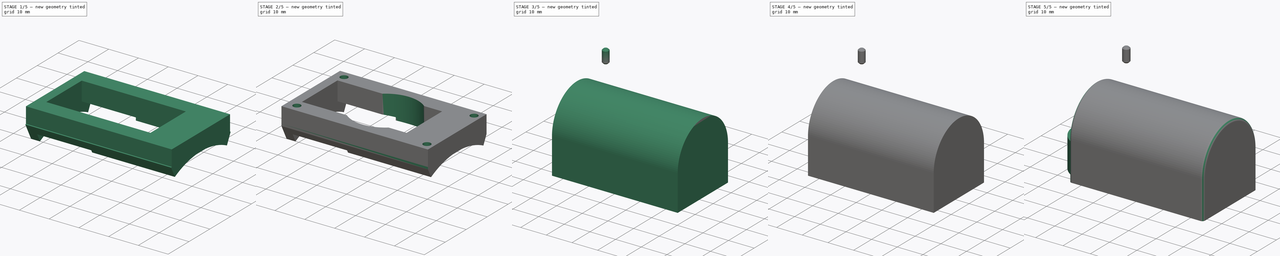
[diagram: build sequence overview — one tinted view per stage of 5, left to right]
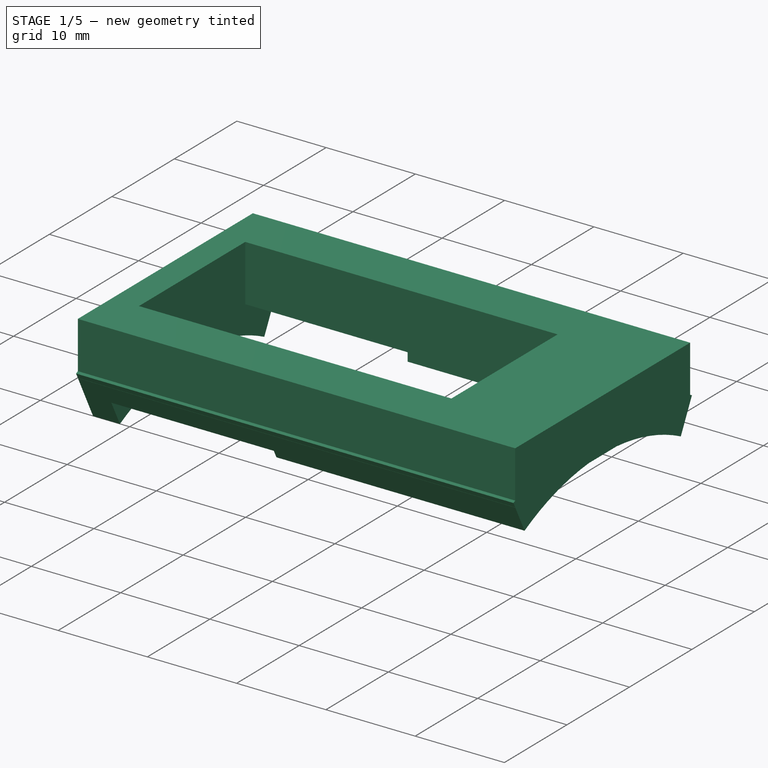
[diagram: stage 1 of 5 — iso view after this stage's code; geometry added in this stage tinted green]
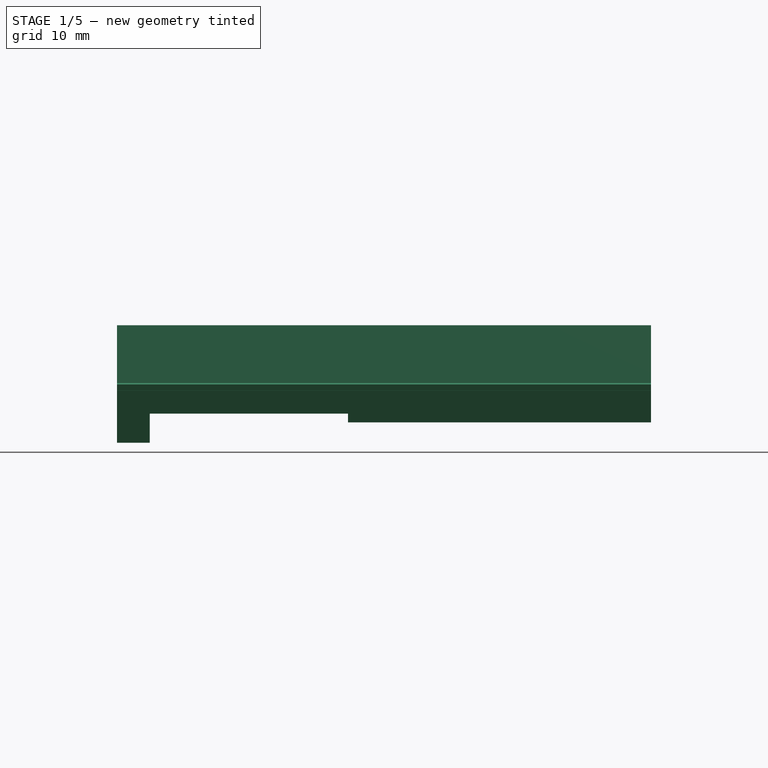
[diagram: stage 1 of 5 — front view after this stage's code; geometry added in this stage tinted green]
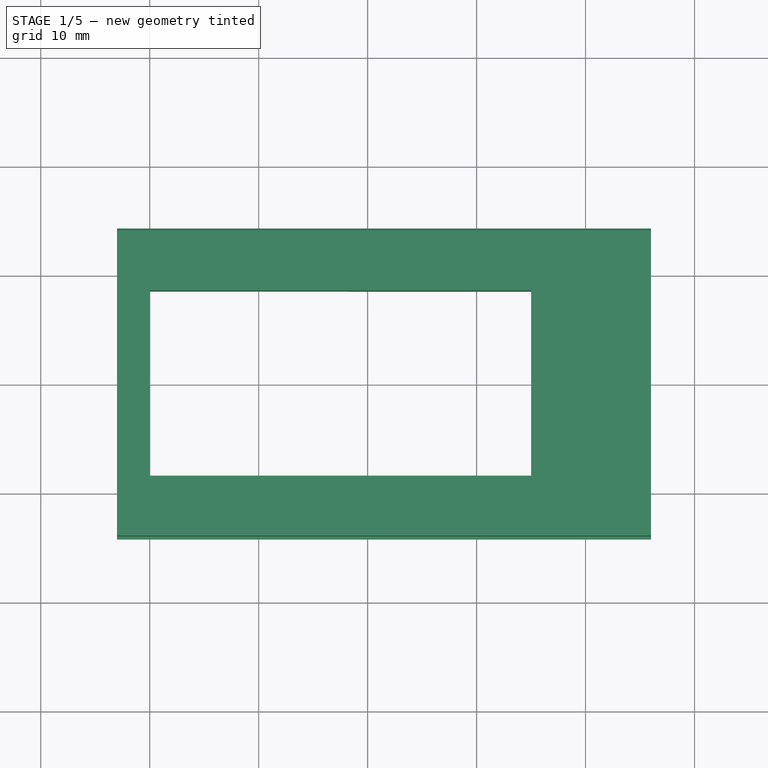
[diagram: stage 1 of 5 — top view after this stage's code; geometry added in this stage tinted green]
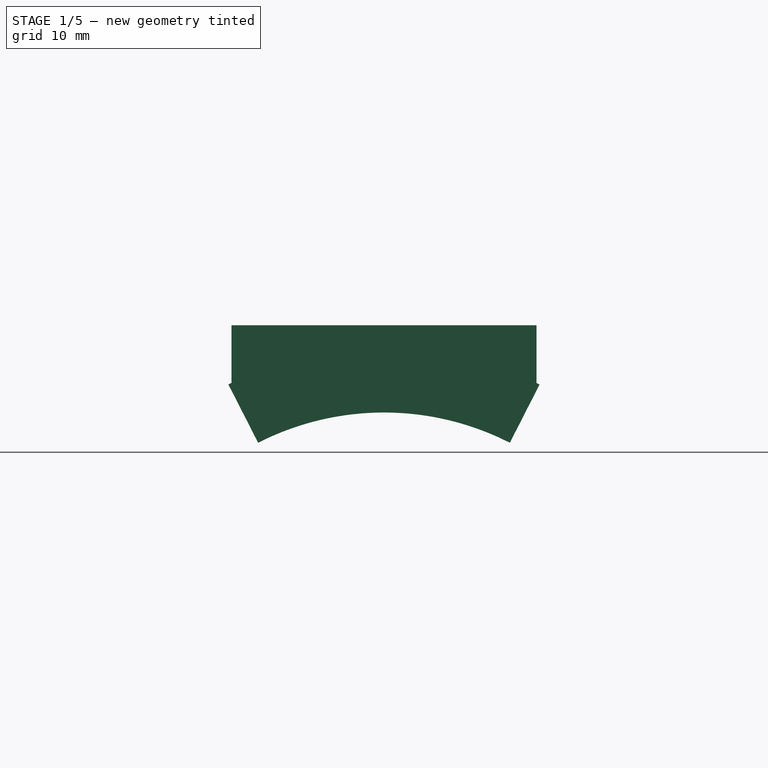
[diagram: stage 1 of 5 — right view after this stage's code; geometry added in this stage tinted green]
FCSTD DOCUMENT  (FreeCAD 0.21R31155 (Git))
Label: ConnectorHousing
License: All rights reserved
LicenseURL: http://en.wikipedia.org/wiki/All_rights_reserved
objects: Sketcher::SketchObject×10, PartDesign::Pocket×7, PartDesign::Pad×4, PartDesign::Body×4, PartDesign::SubShapeBinder×2, App::Part×2, PartDesign::Fillet×2, PartDesign::CoordinateSystem×2, Spreadsheet::Sheet×1, PartDesign::Revolution×1, App::TextDocument×1, PartDesign::Chamfer×1
note: 48 computed .brp shape members not serialized (recipe doc carries the construction recipe); baked Part::Feature solids carry a one-line shape summary decoded from their .brp

FEATURE [Spreadsheet::Sheet] Spreadsheet
  cells = A4=Dimensions; A5=ConnectorOuterDiameter; B5(ConnectorOuterDiameter)=22; A6=ConnectorPocketDiameter; B6(ConnectorPocketDiameter)=22; A7=ConnectorThreadDiameter; B7(ConnectorThreadDiameter)=18.03; A8=ConnectorThreadLength; B8(ConnectorThreadLength)=11; A9=ThreadPitch; B9(ThreadPitch)=1; A11=BLDCdiameterMount; B11(BLDCdiameterMount)=56.82; A12=BLDCdiameterMotor; B12(BLDCdiameterMotor)=55; A13=BLDCMountThickness; B13(BLDCMountThickness)=18.2; A14=BLDCMotorThickness; B14(BLDCMotorThickness)=20; A15=BLDCWallThicknes; B15(BLDCWallThicknes)=3; A16=BLCDOverhangThickness; B16(BLCDOverhangThickness)==BLDCWallThicknes; A17=BLDCMountIncludedAngel; B17(BLDCMountIncludedAngel)==MountWidth / (MountOuterDiameter * pi) * 360; A18=BLDCbaseThickness; B18(BLDCbaseThickness)=5; A19=BLDCBaseGlueWidth; B19(BLDCBaseGlueWidth)==MountingBoltThreadDiameter + 3; A21=PositionHoleDiameter; B21(PositionHoleDiameter)=3; A22=PositionHolePocketDepth; B22(PositionHolePocketDepth)==PositionBodyThickness + 0.1; A23=PositionBodyThickness; B23(PositionBodyThickness)=3; A25=MountingBoltThreadDiameter; B25(MountingBoltThreadDiameter)=2.5; A26=MountingBoltPocketDepth; B26(MountingBoltPocketDepth)==BLDCbaseThickness + 0.3; A27=CableClearance; B27(CableClearance)=8; A28=CablePocketLength; B28(CablePocketLength)=35; A30=FiletSize; B30(FiletSize)=1; A32=Calculated Fields; A33=MountOuterDiameter; B33(MountOuterDiameter)==BLDCdiameterMount + BLDCWallThicknes * 2; A34=MountWidth; B34(MountWidth)==ConnectorOuterDiameter + BLDCWallThicknes * 2; A35=MountLength; B35(MountLength)==BLDCWallThicknes + CableClearance + CablePocketLength + BLDCWallThicknes; A36=MountingHoleSeparationH; B36(MountingHoleSeparationH)==MountLength - BLDCBaseGlueWidth; A37=MountingHoleSeparationV; B37(MountingHoleSeparationV)==MountWidth - BLDCBaseGlueWidth; A38=MountingHolePositionH; B38(MountingHolePositionH)==-BLDCWallThicknes + 2 + MountingBoltThreadDiameter / 2; A39=MountPositionZ; B39(MountPositionZ)==BLDCdiameterMount / 2 + BLDCbaseThickness; A40=CablePocketWidth; B40(CablePocketWidth)==MountWidth - BLDCBaseGlueWidth * 2; A42=BasePositionV; B42(BasePositionV)==BLDCdiameterMount / 2 - 1; A43=BodyPositionV; B43(BodyPositionV)==BasePositionV + BLDCbaseThickness + 1; A44=ConnectorClearance; B44(ConnectorClearance)==CableClearance - BLDCbaseThickness - PositionBodyThickness + ConnectorOuterDiameter / 2; A45=ConnectorPositionZ; B45(ConnectorPositionZ)==CableClearance - BLDCbaseThickness + ConnectorPocketDiameter / 2; A46=ConnectorPocketDepth; B46(ConnectorPocketDepth)==MountLength - BLDCWallThicknes; A47=MountOuterDiameter; B47(MountOuterDiameter2)==ConnectorPocketDiameter + BLDCWallThicknes * 2; A48=CablePocketPositionV; B48(CablePocketPosition)=11; A49=CablePocketPositionH; B49(CablePocketPositionH)==ConnectorThreadLength - BLDCWallThicknes; A51=ConnectorBasePocketPositionH; B51(ConnectorBasePocketPositionH)==ConnectorClearance * 2
FEATURE [Sketcher::SketchObject] Sketch
  FullyConstrained = true
  MapMode = 5
  Placement = pos=(0,0,0) rot=(1,0,0;1.5708rad)
  Support = -> [XZ_Plane001]
  expr: Constraints[10] = Spreadsheet.BLDCdiameterMotor / 2
  expr: Constraints[11] = Spreadsheet.BLDCMountThickness
  expr: Constraints[18] = Spreadsheet.BLDCWallThicknes
  expr: Constraints[21] = Spreadsheet.BLDCdiameterMount / 2
  expr: Constraints[22] = Spreadsheet.BLDCWallThicknes
  expr: Constraints[23] = Spreadsheet.MountLength
  sketch-geometry (8):
    g0: LineSegment StartX=-3 StartY=31.41 StartZ=0 EndX=46 EndY=31.41 EndZ=0
    g1: LineSegment StartX=46 StartY=31.41 StartZ=0 EndX=46 EndY=27.5 EndZ=0
    g2: LineSegment StartX=46 StartY=27.5 StartZ=0 EndX=18.2 EndY=27.5 EndZ=0
    g3: LineSegment StartX=18.2 StartY=27.5 StartZ=0 EndX=18.2 EndY=28.41 EndZ=0
    g4: LineSegment StartX=18.2 StartY=28.41 StartZ=0 EndX=0 EndY=28.41 EndZ=0
    g5: LineSegment StartX=-3 StartY=25.41 StartZ=0 EndX=0 EndY=25.41 EndZ=0
    g6: LineSegment StartX=0 StartY=25.41 StartZ=0 EndX=0 EndY=28.41 EndZ=0
    g7: LineSegment StartX=-3 StartY=31.41 StartZ=0 EndX=-3 EndY=25.41 EndZ=0
  constraints (24):
    c: PointOnObject(g4,g-2)
    c: Horizontal(g0)
    c: Coincident(g0,g1)
    c: Vertical(g1)
    c: Coincident(g1,g2)
    c: Horizontal(g2)
    c: Coincident(g2,g3)
    c: Vertical(g3)
    c: Coincident(g3,g4)
    c: Horizontal(g4)
    c: DistanceY(g-1,g2) = 27.5
    c: DistanceX(g4,g4) = 18.2
    c: PointOnObject(g5,g-2)
    c: Horizontal(g5)
    c: Coincident(g5,g6)
    c: Coincident(g7,g0)
    c: Coincident(g7,g5)
    c: Vertical(g7)
    c: DistanceY(g6,g6) = 3
    c: Equal(g6,g5)
    c: Coincident(g6,g4)
    c: DistanceY(g-1,g4) = 28.41
    c: DistanceY(g4,g0) = 3
    c: DistanceX(g0,g0) = 49
FEATURE [PartDesign::Revolution] Revolution  label="RoundBase"
  Angle = 54.0755
  Axis = (1,0,0)
  Base = (0,0,0)
  Midplane = true
  Placement = pos=(0,0,0) rot=(1,0,0;1.5708rad)
  Profile = -> Sketch
  ReferenceAxis = -> X_Axis001
  Reversed = true
  expr: Angle = Spreadsheet.BLDCMountIncludedAngel + 3
FEATURE [Sketcher::SketchObject] Sketch001
  AttachmentOffset = pos=(0,0,28.41) rot=(0,0,1;0rad)
  FullyConstrained = true
  MapMode = 5
  Placement = pos=(0,0,28.41) rot=(0,0,1;0rad)
  Support = -> [XY_Plane001]
  expr: .AttachmentOffset.Base.z = Spreadsheet.BLDCdiameterMount / 2
  expr: Constraints[7] = Spreadsheet.MountLength
  expr: Constraints[8] = Spreadsheet.MountWidth
  expr: Constraints[9] = Spreadsheet.BLDCWallThicknes
  sketch-geometry (8):
    g0: LineSegment StartX=-3 StartY=14 StartZ=0 EndX=46 EndY=14 EndZ=0
    g1: LineSegment StartX=46 StartY=14 StartZ=0 EndX=46 EndY=-14 EndZ=0
    g2: LineSegment StartX=46 StartY=-14 StartZ=0 EndX=-3 EndY=-14 EndZ=0
    g3: LineSegment StartX=-3 StartY=-14 StartZ=0 EndX=-3 EndY=14 EndZ=0
    g4: LineSegment StartX=-8 StartY=19 StartZ=0 EndX=51 EndY=19 EndZ=0
    g5: LineSegment StartX=51 StartY=19 StartZ=0 EndX=51 EndY=-19 EndZ=0
    g6: LineSegment StartX=51 StartY=-19 StartZ=0 EndX=-8 EndY=-19 EndZ=0
    g7: LineSegment StartX=-8 StartY=-19 StartZ=0 EndX=-8 EndY=19 EndZ=0
  constraints (22):
    c: Coincident(g0,g1)
    c: Coincident(g1,g2)
    c: Coincident(g2,g3)
    c: Coincident(g3,g0)
    c: Horizontal(g0)
    c: Horizontal(g2)
    c: Vertical(g1)
    c: DistanceX(g2,g2) = 49
    c: DistanceY(g3,g3) = 28
    c: DistanceX(g2,g-1) = 3
    c: Symmetric(g2,g0,g-1)
    c: Coincident(g4,g5)
    c: Coincident(g5,g6)
    c: Coincident(g6,g7)
    c: Coincident(g7,g4)
    c: Horizontal(g4)
    c: Horizontal(g6)
    c: Vertical(g5)
    c: Symmetric(g6,g4,g-1)
    c: DistanceX(g4,g0) = 5
    c: DistanceX(g0,g4) = 5
    c: DistanceY(g0,g4) = 5
FEATURE [Sketcher::SketchObject] Sketch002
  AttachmentOffset = pos=(0,0,27.41) rot=(0,0,1;0rad)
  FullyConstrained = true
  MapMode = 5
  Placement = pos=(0,0,27.41) rot=(0,0,1;0rad)
  Support = -> [XY_Plane001]
  expr: .AttachmentOffset.Base.z = Spreadsheet.BasePositionV
  expr: Constraints[10] = Spreadsheet.BLDCWallThicknes
  expr: Constraints[8] = Spreadsheet.MountWidth
  expr: Constraints[9] = Spreadsheet.MountLength
  sketch-geometry (4):
    g0: LineSegment StartX=-3 StartY=14 StartZ=0 EndX=46 EndY=14 EndZ=0
    g1: LineSegment StartX=46 StartY=14 StartZ=0 EndX=46 EndY=-14 EndZ=0
    g2: LineSegment StartX=46 StartY=-14 StartZ=0 EndX=-3 EndY=-14 EndZ=0
    g3: LineSegment StartX=-3 StartY=-14 StartZ=0 EndX=-3 EndY=14 EndZ=0
  constraints (11):
    c: Coincident(g0,g1)
    c: Coincident(g1,g2)
    c: Coincident(g2,g3)
    c: Coincident(g3,g0)
    c: Horizontal(g0)
    c: Horizontal(g2)
    c: Vertical(g1)
    c: Symmetric(g2,g0,g-1)
    c: DistanceY(g3,g3) = 28
    c: DistanceX(g0,g0) = 49
    c: DistanceX(g0,g-1) = 3
FEATURE [PartDesign::Pad] Pad  label="FlatBase"
  BaseFeature = -> Revolution
  Direction = (0,0,1)
  Length = 6
  Length2 = 10
  Placement = pos=(0,0,0) rot=(1,0,0;1.5708rad)
  Profile = -> Sketch002
  ReferenceAxis = -> Sketch002 [N_Axis]
  Type = 0
  expr: Length = Spreadsheet.BLDCbaseThickness + 1
FEATURE [Sketcher::SketchObject] Sketch003
  FullyConstrained = false
  MapMode = 5
  Support = -> [XY_Plane001]
  expr: Constraints[11] = Spreadsheet.CablePocketLength
  expr: Constraints[12] = Spreadsheet.CablePocketWidth
  sketch-geometry (5):
    g0: LineSegment StartX=0 StartY=8.5 StartZ=0 EndX=35 EndY=8.5 EndZ=0
    g1: LineSegment StartX=35 StartY=8.5 StartZ=0 EndX=35 EndY=-8.5 EndZ=0
    g2: LineSegment StartX=35 StartY=-8.5 StartZ=0 EndX=0 EndY=-8.5 EndZ=0
    g3: LineSegment StartX=0 StartY=-8.5 StartZ=0 EndX=0 EndY=8.5 EndZ=0
    g4: LineSegment StartX=0 StartY=8.5 StartZ=0 EndX=0 EndY=7.43772 EndZ=0
  constraints (13):
    c: Coincident(g0,g1)
    c: Coincident(g1,g2)
    c: Coincident(g2,g3)
    c: Coincident(g3,g0)
    c: Horizontal(g0)
    c: Horizontal(g2)
    c: Vertical(g1)
    c: Symmetric(g0,g2,g-1)
    c: Coincident(g4,g0)
    c: Vertical(g4)
    c: PointOnObject(g2,g-2)
    c: DistanceX(g0,g0) = 35
    c: DistanceY(g3,g3) = 17
FEATURE [PartDesign::Pocket] Pocket001  label="CablePocket"
  BaseFeature = -> Pad
  Direction = (0,0,-1)
  Length = 30
  Length2 = 5
  Midplane = true
  Placement = pos=(0,0,0) rot=(1,0,0;1.5708rad)
  Profile = -> Sketch003
  ReferenceAxis = -> Sketch003 [N_Axis]
  Type = 1
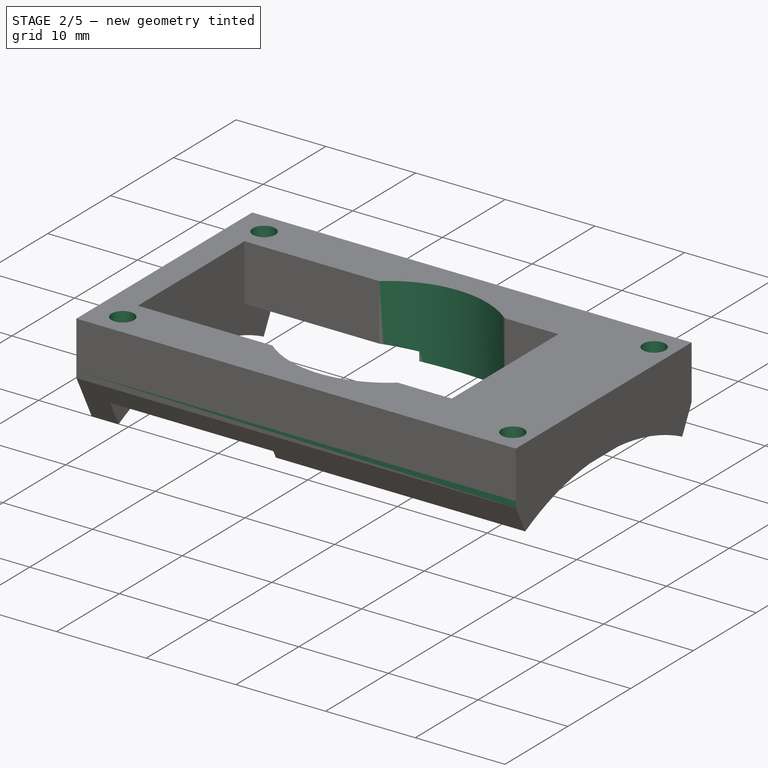
[diagram: stage 2 of 5 — iso view after this stage's code; geometry added in this stage tinted green]
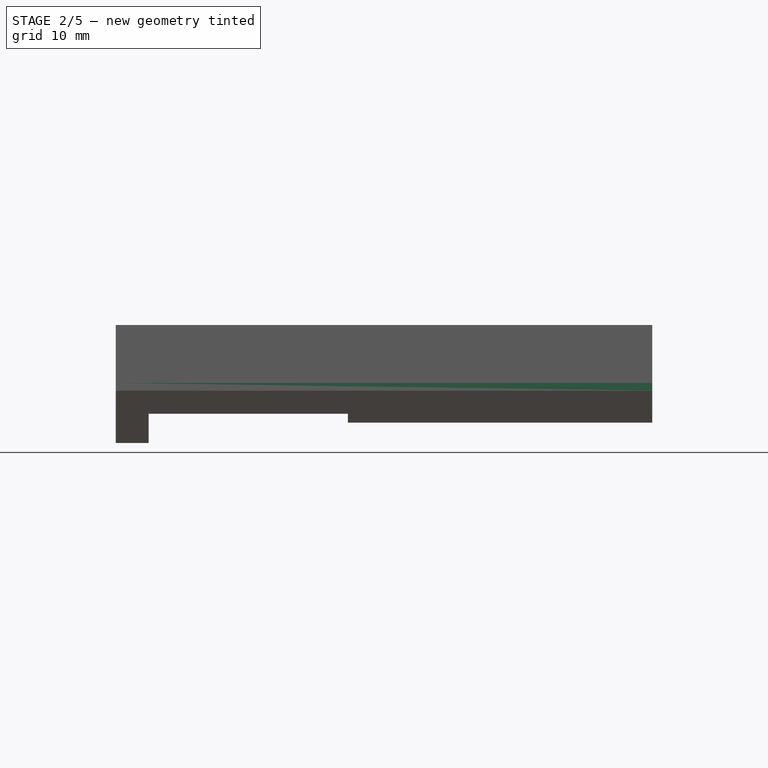
[diagram: stage 2 of 5 — front view after this stage's code; geometry added in this stage tinted green]
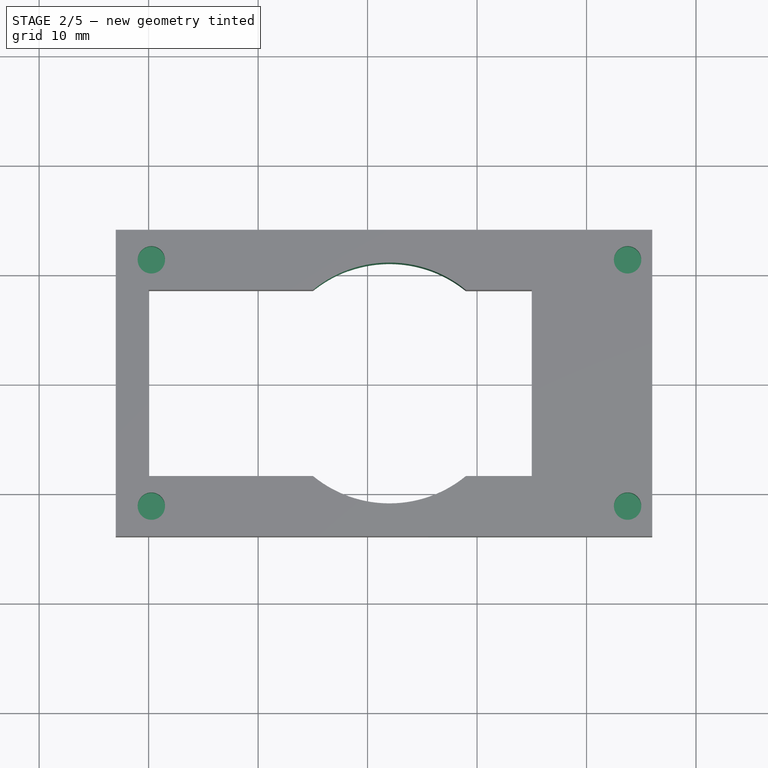
[diagram: stage 2 of 5 — top view after this stage's code; geometry added in this stage tinted green]
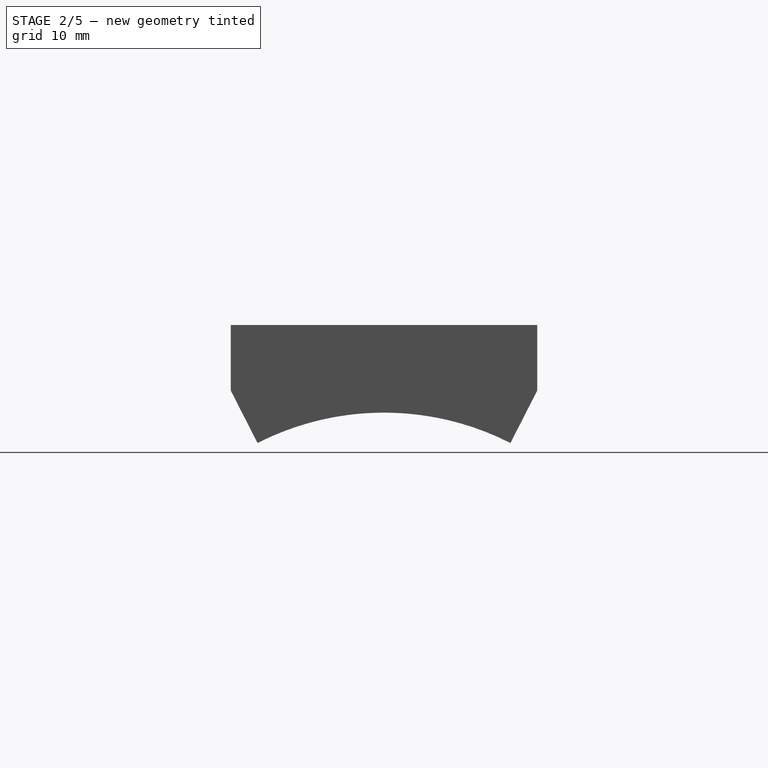
[diagram: stage 2 of 5 — right view after this stage's code; geometry added in this stage tinted green]
FEATURE [PartDesign::Body] Body001  label="Housing"
  Group = -> [Sketch005,Pad001,Sketch006,Pocket002,Sketch007,Pocket003,Binder001,Pocket004,Fillet,Fillet001]
  Origin = -> Origin003
  Placement = pos=(0,0,33.41) rot=(0,0,1;0rad)
  Tip = -> Fillet001
  expr: .Placement.Base.z = Spreadsheet.BodyPositionV
FEATURE [PartDesign::Pocket] Pocket  label="HolePocket"
  BaseFeature = -> Pocket001
  Direction = (0,0,-1)
  Length = 3.1
  Length2 = 5
  Placement = pos=(0,0,0) rot=(1,0,0;1.5708rad)
  Profile = -> Sketch004
  ReferenceAxis = -> Sketch004 [N_Axis]
  Type = 0
  expr: Length = Spreadsheet.PositionHolePocketDepth
FEATURE [PartDesign::Pocket] Pocket005  label="SidePocket"
  BaseFeature = -> Pocket
  Direction = (0,0,-1)
  Length = 5
  Length2 = 5
  Placement = pos=(0,0,0) rot=(1,0,0;1.5708rad)
  Profile = -> Sketch001
  ReferenceAxis = -> Sketch001 [N_Axis]
  Type = 1
FEATURE [App::TextDocument] Text_document  label="Cable Wiring"
  Text = BLDC motor to GX-20-12 connector: 57BLR70-24-02	\nPin	Colour	Description\n1,2	Orange	U\n3,4	Green	V\n5,6	Brown	W\n\n7	Black	GND\n8	Yellow	HAL A\n9	White	HAL B\n10	Blue	HAL C\n11	RED	+5V\n12	nc	nc\n\nBLDC driver to GX20-12 connector: DBLS-01S	\nPin	Colour	Description	\n1,2	Orange	MA (U)\n3,4	Green	MB (V)\n5,6	Brown	MC (W)\n\n7	Black	GND\n8	Yellow	HAL A\n9	White	HAL B\n10	Blue	HAL C\n11	RED	+5V\n12	nc	nc	\n\nCable GX20	\nPin	Colour	Description	\n1	black	MA (U)\n2	Brown	MA (U)\n3	Red	MB (V)\n4	Orange	MB (V)\n5	Yellow	MC (W)\n6	Green	MC (W)\n\n7	Blue	GND\n8	Violet	HAL A\n9	Grey	HAL B\n10	White	HAL C\n11	RED/Blue	+5V\n12	Grey/red	nc	\n	
FEATURE [Sketcher::SketchObject] Sketch009
  FullyConstrained = true
  MapMode = 5
  Support = -> [XY_Plane001]
  expr: Constraints[1] = Spreadsheet.ConnectorOuterDiameter
  expr: Constraints[2] = Spreadsheet.ConnectorBasePocketPositionH
  sketch-geometry (1):
    g0: Circle CenterX=22 CenterY=0 CenterZ=0 NormalX=0 NormalY=0 NormalZ=1 AngleXU=0 Radius=11
  constraints (3):
    c: PointOnObject(g0,g-1)
    c: Diameter(g0) = 22
    c: DistanceX(g-1,g0) = 22
FEATURE [PartDesign::Pocket] Pocket006  label="ConnectorPocket001"
  BaseFeature = -> Pocket005
  Direction = (0,0,-1)
  Length = 5
  Length2 = 5
  Placement = pos=(0,0,0) rot=(1,0,0;1.5708rad)
  Profile = -> Sketch009
  ReferenceAxis = -> Sketch009 [N_Axis]
  Reversed = true
  Type = 1
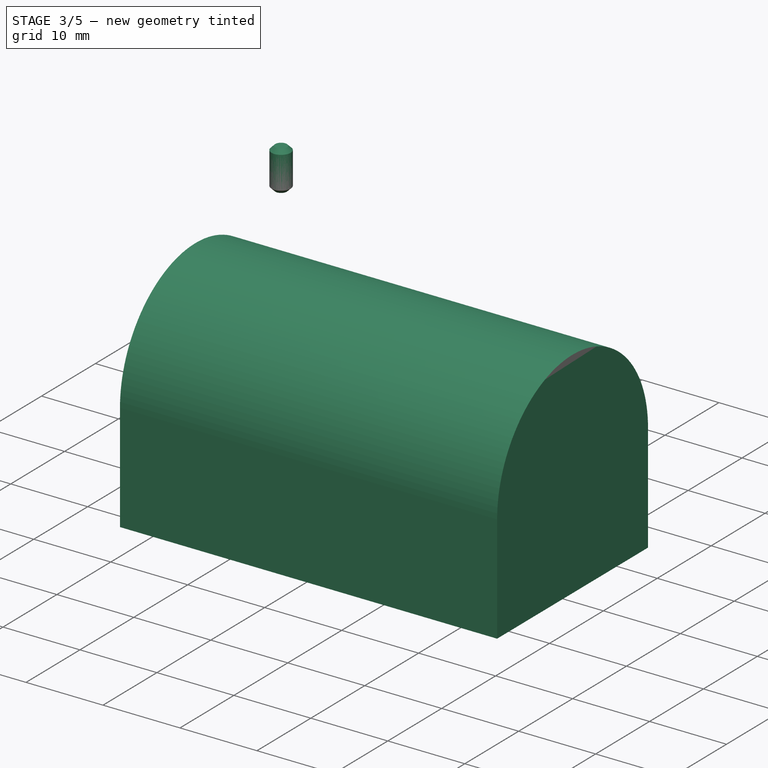
[diagram: stage 3 of 5 — iso view after this stage's code; geometry added in this stage tinted green]
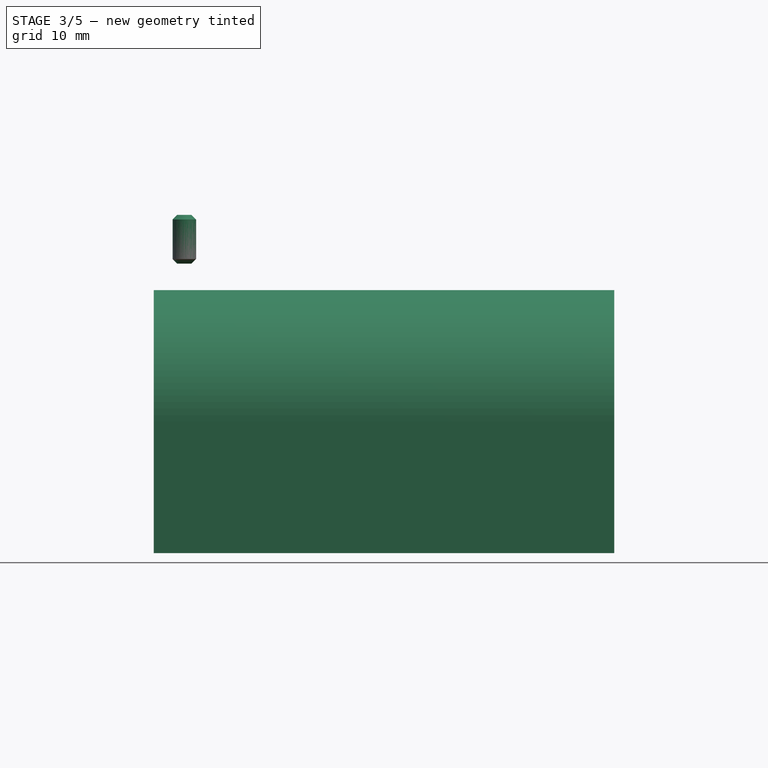
[diagram: stage 3 of 5 — front view after this stage's code; geometry added in this stage tinted green]
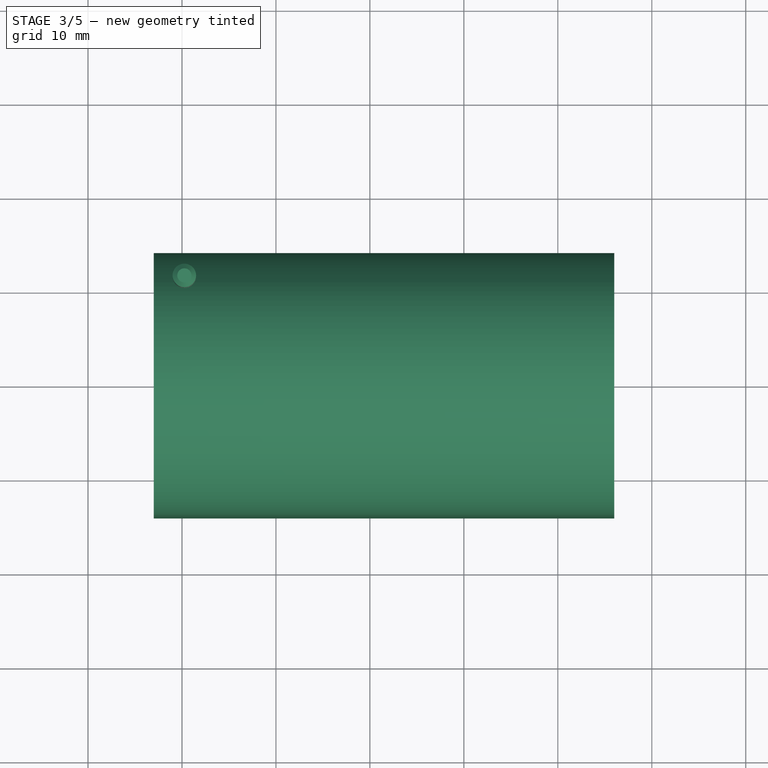
[diagram: stage 3 of 5 — top view after this stage's code; geometry added in this stage tinted green]
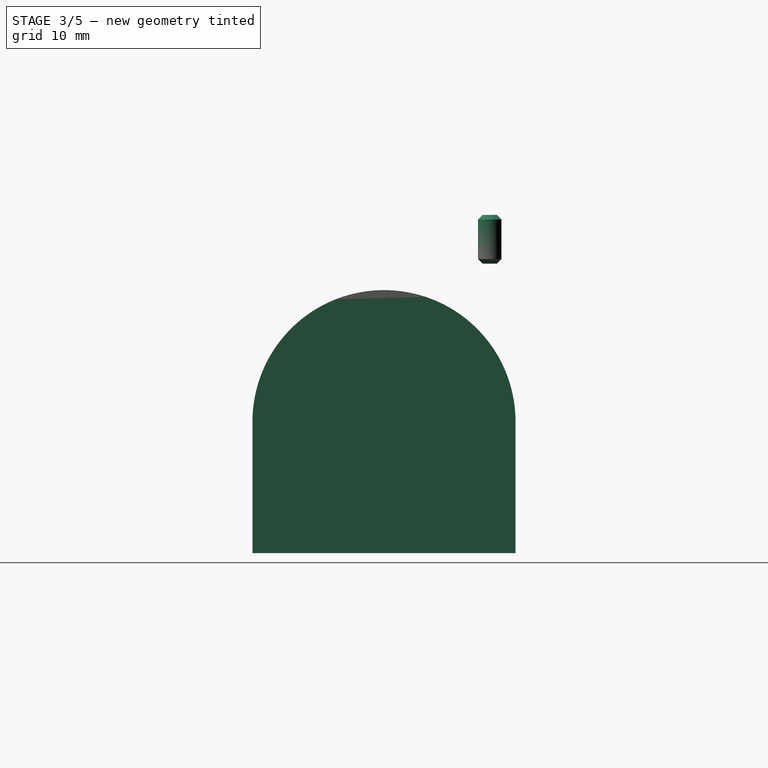
[diagram: stage 3 of 5 — right view after this stage's code; geometry added in this stage tinted green]
FEATURE [Sketcher::SketchObject] Sketch004
  AttachmentOffset = pos=(0,0,33.51) rot=(0,0,1;0rad)
  FullyConstrained = true
  MapMode = 5
  Placement = pos=(0,0,33.51) rot=(0,0,1;0rad)
  Support = -> [XY_Plane001]
  expr: .AttachmentOffset.Base.z = Spreadsheet.MountPositionZ + 0.1
  expr: Constraints[10] = Spreadsheet.MountingHolePositionH
  expr: Constraints[18] = Spreadsheet.MountingBoltThreadDiameter
  expr: Constraints[8] = Spreadsheet.MountingHoleSeparationV
  expr: Constraints[9] = Spreadsheet.MountingHoleSeparationH
  sketch-geometry (8):
    g0: LineSegment StartX=0.25 StartY=11.25 StartZ=0 EndX=43.75 EndY=11.25 EndZ=0
    g1: LineSegment StartX=43.75 StartY=11.25 StartZ=0 EndX=43.75 EndY=-11.25 EndZ=0
    g2: LineSegment StartX=43.75 StartY=-11.25 StartZ=0 EndX=0.25 EndY=-11.25 EndZ=0
    g3: LineSegment StartX=0.25 StartY=-11.25 StartZ=0 EndX=0.25 EndY=11.25 EndZ=0
    g4: Circle CenterX=43.75 CenterY=11.25 CenterZ=0 NormalX=0 NormalY=0 NormalZ=1 AngleXU=0 Radius=1.25
    g5: Circle CenterX=0.25 CenterY=11.25 CenterZ=0 NormalX=0 NormalY=0 NormalZ=1 AngleXU=0 Radius=1.25
    g6: Circle CenterX=0.25 CenterY=-11.25 CenterZ=0 NormalX=0 NormalY=0 NormalZ=1 AngleXU=0 Radius=1.25
    g7: Circle CenterX=43.75 CenterY=-11.25 CenterZ=0 NormalX=0 NormalY=0 NormalZ=1 AngleXU=0 Radius=1.25
  constraints (19):
    c: Coincident(g0,g1)
    c: Coincident(g1,g2)
    c: Coincident(g2,g3)
    c: Coincident(g3,g0)
    c: Horizontal(g0)
    c: Horizontal(g2)
    c: Vertical(g1)
    c: Symmetric(g0,g2,g-1)
    c: DistanceY(g3,g3) = 22.5
    c: DistanceX(g0,g0) = 43.5
    c: DistanceX(g-1,g2) = 0.25
    c: Coincident(g4,g0)
    c: Coincident(g5,g0)
    c: Coincident(g6,g2)
    c: Coincident(g7,g1)
    c: Equal(g5,g4)
    c: Equal(g4,g7)
    c: Equal(g7,g6)
    c: Diameter(g5) = 2.5
FEATURE [Sketcher::SketchObject] Sketch005
  AttachmentOffset = pos=(0,0,-3) rot=(0,0,1;0rad)
  FullyConstrained = true
  MapMode = 5
  Placement = pos=(-3,7e-16,-7e-16) rot=(0.57735,0.57735,0.57735;2.0944rad)
  Support = -> [YZ_Plane003]
  expr: .AttachmentOffset.Base.z = -Spreadsheet.BLDCWallThicknes
  expr: Constraints[10] = Spreadsheet.ConnectorPositionZ
  expr: Constraints[12] = Spreadsheet.ConnectorPocketDiameter
  expr: Constraints[7] = Spreadsheet.MountWidth
  sketch-geometry (5):
    g0: LineSegment StartX=-14 StartY=0 StartZ=0 EndX=-14 EndY=14 EndZ=0
    g1: ArcOfCircle CenterX=0 CenterY=14 CenterZ=0 NormalX=0 NormalY=0 NormalZ=1 AngleXU=0 Radius=14 StartAngle=1e-16 EndAngle=3.14159
    g2: LineSegment StartX=14 StartY=14 StartZ=0 EndX=14 EndY=0 EndZ=0
    g3: LineSegment StartX=14 StartY=0 StartZ=0 EndX=-14 EndY=0 EndZ=0
    g4: Circle CenterX=0 CenterY=14 CenterZ=0 NormalX=0 NormalY=0 NormalZ=1 AngleXU=0 Radius=11
  constraints (13):
    c: Vertical(g0)
    c: Tangent(g0,g1) = 1.5708
    c: Tangent(g1,g2) = 1.5708
    c: Coincident(g2,g3)
    c: Coincident(g3,g0)
    c: Horizontal(g3)
    c: PointOnObject(g1,g-2)
    c: DistanceX(g3,g3) = 28
    c: Vertical(g2)
    c: PointOnObject(g-1,g3)
    c: DistanceY(g2,g2) = 14
    c: Coincident(g4,g1)
    c: Diameter(g4) = 22
FEATURE [PartDesign::Pad] Pad001  label="Body"
  Direction = (1,-2e-16,3e-16)
  Length = 49
  Length2 = 10
  Placement = pos=(0,0,0) rot=(0.57735,0.57735,0.57735;2.0944rad)
  Profile = -> Sketch005
  ReferenceAxis = -> Sketch005 [N_Axis]
  Type = 0
  expr: Length = Spreadsheet.MountLength
FEATURE [PartDesign::Body] Body  label="Base"
  Group = -> [Sketch,Revolution,Pad,Pocket001,Pocket,Pocket005,Sketch001,Sketch002,Sketch003,Sketch004,Sketch009,Pocket006]
  Origin = -> Origin001
  Tip = -> Pocket006
FEATURE [PartDesign::SubShapeBinder] Binder  label="PositionHoleBinder001"
  BindCopyOnChange = 0
  BindMode = 0
  ClaimChildren = false
  Context = -> Part [Body003.Binder.]
  Fuse = false
  MakeFace = true
  OffsetFill = false
  OffsetIntersection = false
  OffsetJoinType = 0
  OffsetOpenResult = false
  PartialLoad = false
  Relative = true
  Support = -> [Body[Pocket.Edge33]]
  _Version = 2
FEATURE [PartDesign::Pad] Pad003
  Direction = (0,0,1)
  Length = 5.2
  Length2 = 10
  Midplane = true
  Profile = -> Binder
  Type = 0
  expr: Length = Spreadsheet.PositionHolePocketDepth * 2 - 1
FEATURE [PartDesign::Chamfer] Chamfer
  Angle = 45
  Base = -> Pad003 [Face3,Face2]
  BaseFeature = -> Pad003
  ChamferType = 0
  FlipDirection = false
  Size = 0.5
  Size2 = 1
  SupportTransform = false
  UseAllEdges = false
FEATURE [PartDesign::Body] Body003  label="Positioner"
  Group = -> [Binder,Pad003,Chamfer]
  Origin = -> Origin007
  Tip = -> Chamfer
FEATURE [PartDesign::CoordinateSystem] Back
  AttacherType = Attacher::AttachEngine3D
  MapMode = 45
  Placement = pos=(46,1.3e-15,26.2879) rot=(0.707107,0,0.707107;3.14159rad)
  Support = -> [Pocket006]
FEATURE [PartDesign::CoordinateSystem] Front
  AttacherType = Attacher::AttachEngine3D
  MapMode = 45
  Placement = pos=(0,-2.6e-14,26.2687) rot=(0.707107,0,0.707107;3.14159rad)
  Support = -> [Pocket006]
FEATURE [App::Part] Part  label="ConnectorHousing"
  Group = -> [Body,Body001,Body003,Back,Front]
  Origin = -> Origin
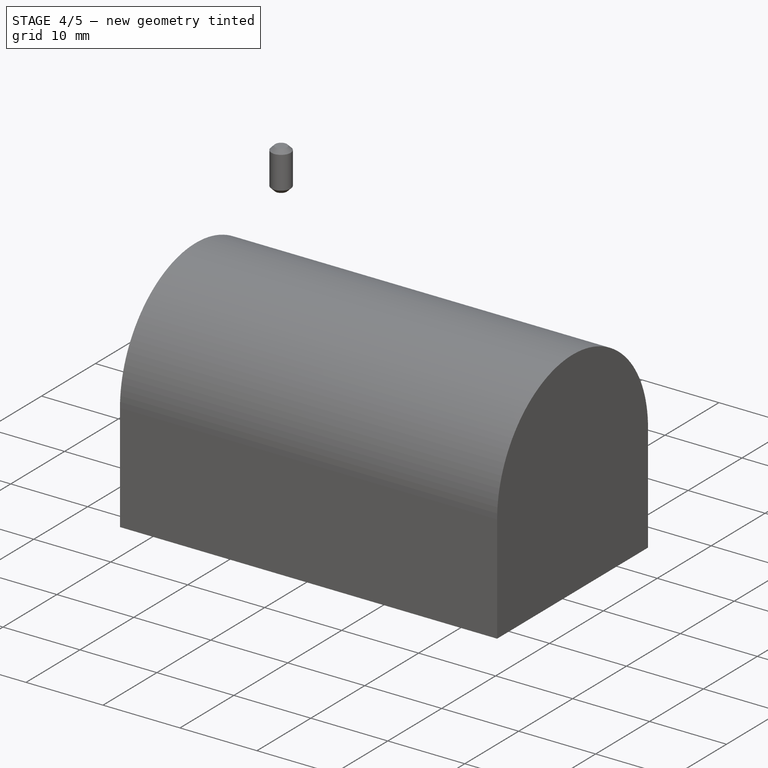
[diagram: stage 4 of 5 — iso view after this stage's code; geometry added in this stage tinted green]
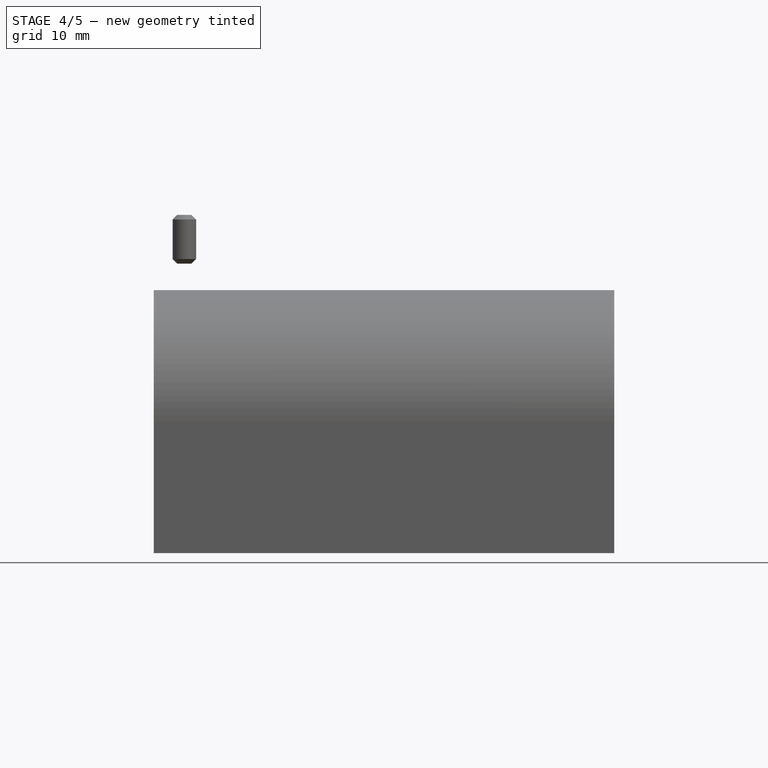
[diagram: stage 4 of 5 — front view after this stage's code; geometry added in this stage tinted green]
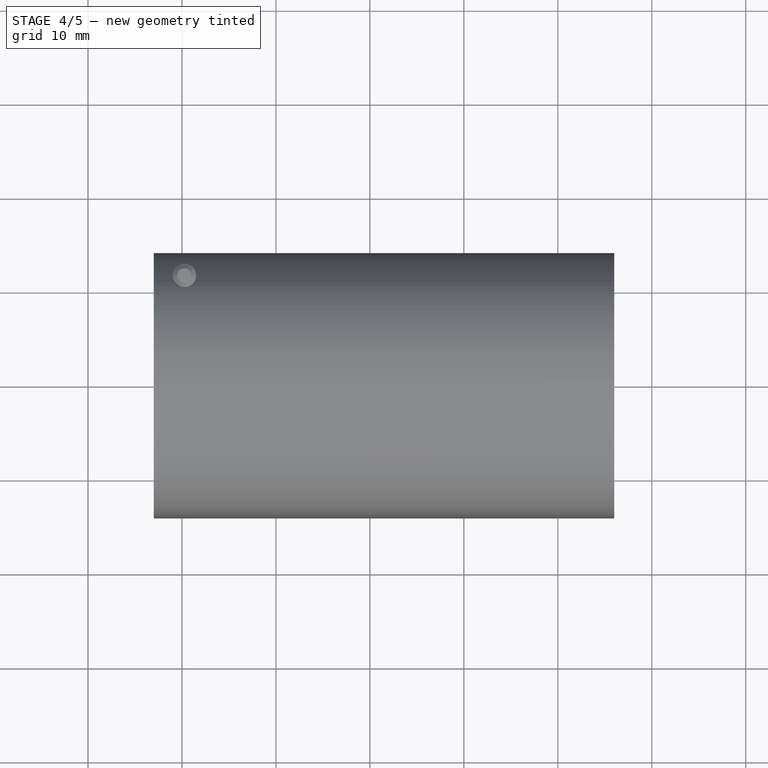
[diagram: stage 4 of 5 — top view after this stage's code; geometry added in this stage tinted green]
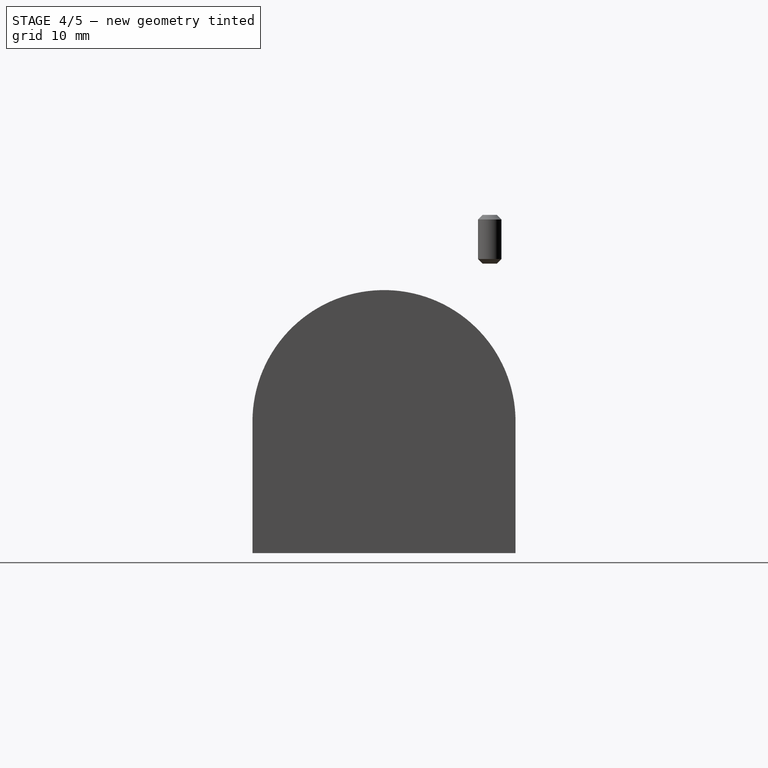
[diagram: stage 4 of 5 — right view after this stage's code; geometry added in this stage tinted green]
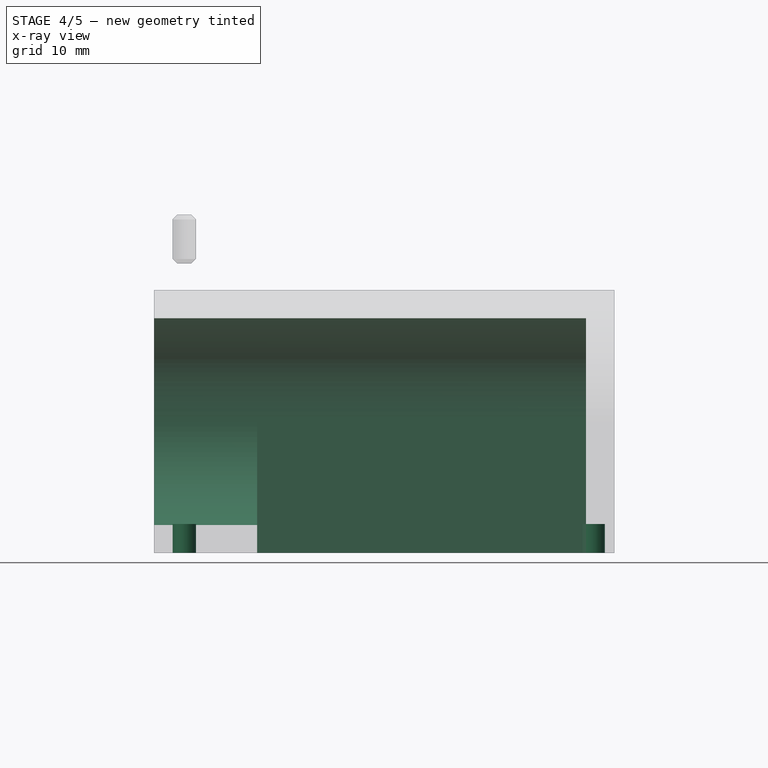
[diagram: stage 4 of 5 — x-ray composite at the front view; earlier geometry ghosted, this stage's added geometry solid]
FEATURE [Sketcher::SketchObject] Sketch006
  AttachmentOffset = pos=(0,0,-3) rot=(0,0,1;0rad)
  FullyConstrained = true
  MapMode = 5
  Placement = pos=(-3,7e-16,-7e-16) rot=(0.57735,0.57735,0.57735;2.0944rad)
  Support = -> [YZ_Plane003]
  expr: .AttachmentOffset.Base.z = -Spreadsheet.BLDCWallThicknes
  expr: Constraints[1] = Spreadsheet.ConnectorPocketDiameter
  expr: Constraints[2] = Spreadsheet.ConnectorPositionZ
  sketch-geometry (1):
    g0: Circle CenterX=0 CenterY=14 CenterZ=0 NormalX=0 NormalY=0 NormalZ=1 AngleXU=0 Radius=11
  constraints (3):
    c: PointOnObject(g0,g-2)
    c: Diameter(g0) = 22
    c: DistanceY(g-1,g0) = 14
FEATURE [PartDesign::Pocket] Pocket002  label="ConnectorPocket"
  BaseFeature = -> Pad001
  Direction = (-1,2e-16,-3e-16)
  Length = 46
  Length2 = 5
  Placement = pos=(0,0,0) rot=(0.57735,0.57735,0.57735;2.0944rad)
  Profile = -> Sketch006
  ReferenceAxis = -> Sketch006 [N_Axis]
  Reversed = true
  Type = 0
  expr: Length = Spreadsheet.ConnectorPocketDepth
FEATURE [Sketcher::SketchObject] Sketch007
  FullyConstrained = true
  MapMode = 5
  Support = -> [XY_Plane003]
  expr: Constraints[10] = Spreadsheet.CablePocketLength
  expr: Constraints[7] = Spreadsheet.ConnectorPocketDiameter + 1
  expr: Constraints[9] = Spreadsheet.CablePocketPositionH
  sketch-geometry (4):
    g0: LineSegment StartX=8 StartY=11.5 StartZ=0 EndX=43 EndY=11.5 EndZ=0
    g1: LineSegment StartX=43 StartY=11.5 StartZ=0 EndX=43 EndY=-11.5 EndZ=0
    g2: LineSegment StartX=43 StartY=-11.5 StartZ=0 EndX=8 EndY=-11.5 EndZ=0
    g3: LineSegment StartX=8 StartY=-11.5 StartZ=0 EndX=8 EndY=11.5 EndZ=0
  constraints (11):
    c: Coincident(g0,g1)
    c: Coincident(g1,g2)
    c: Coincident(g2,g3)
    c: Coincident(g3,g0)
    c: Horizontal(g0)
    c: Horizontal(g2)
    c: Vertical(g1)
    c: DistanceY(g1,g1) = 23
    c: Symmetric(g2,g0,g-1)
    c: DistanceX(g-1,g0) = 8
    c: DistanceX(g0,g0) = 35
FEATURE [PartDesign::Pocket] Pocket003  label="CablePocket001"
  BaseFeature = -> Pocket002
  Direction = (0,0,-1)
  Length = 14
  Length2 = 5
  Placement = pos=(0,0,0) rot=(0.57735,0.57735,0.57735;2.0944rad)
  Profile = -> Sketch007
  ReferenceAxis = -> Sketch007 [N_Axis]
  Reversed = true
  Type = 0
  expr: Length = Spreadsheet.ConnectorPositionZ
FEATURE [PartDesign::SubShapeBinder] Binder001  label="PositionHoleBinder"
  BindCopyOnChange = 0
  BindMode = 0
  ClaimChildren = false
  Context = -> Part [Body001.Binder001.]
  Fuse = false
  MakeFace = true
  OffsetFill = false
  OffsetIntersection = false
  OffsetJoinType = 0
  OffsetOpenResult = false
  PartialLoad = false
  Placement = pos=(0,0,-0.1) rot=(0,0,1;0rad)
  Relative = true
  Support = -> [Body[Hole.Sketch004.]]
  _Version = 2
FEATURE [PartDesign::Pocket] Pocket004
  BaseFeature = -> Pocket003
  Direction = (0,0,-1)
  Length = 3.1
  Length2 = 5
  Placement = pos=(0,0,0) rot=(0.57735,0.57735,0.57735;2.0944rad)
  Profile = -> Binder001
  Reversed = true
  Type = 0
  expr: Length = Spreadsheet.PositionHolePocketDepth
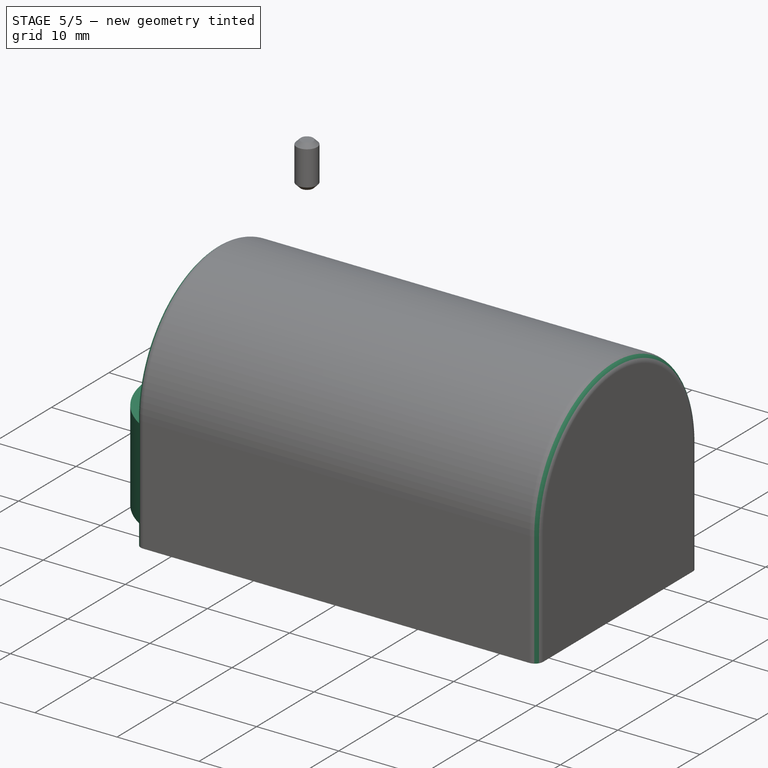
[diagram: stage 5 of 5 — iso view after this stage's code; geometry added in this stage tinted green]
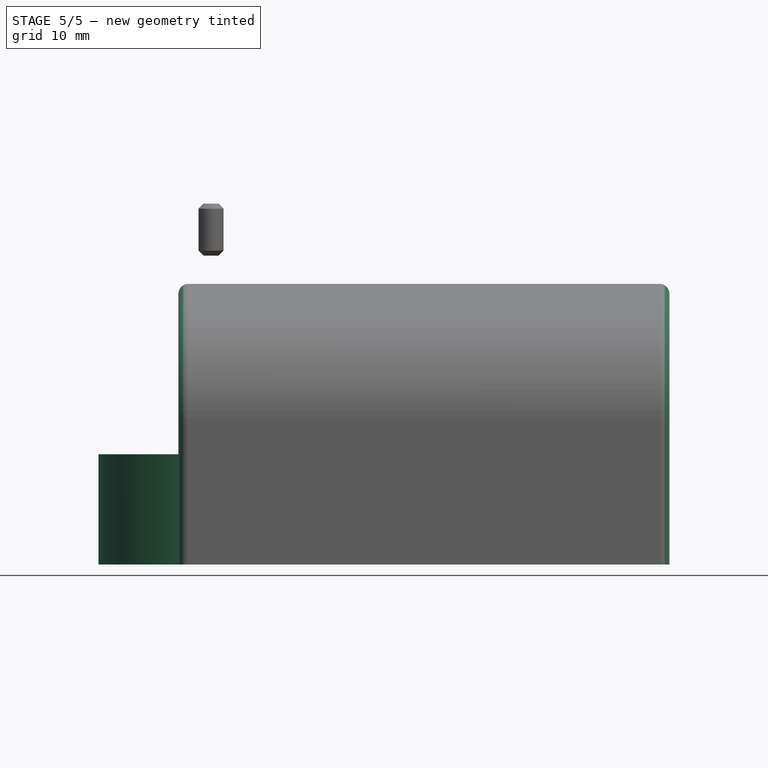
[diagram: stage 5 of 5 — front view after this stage's code; geometry added in this stage tinted green]
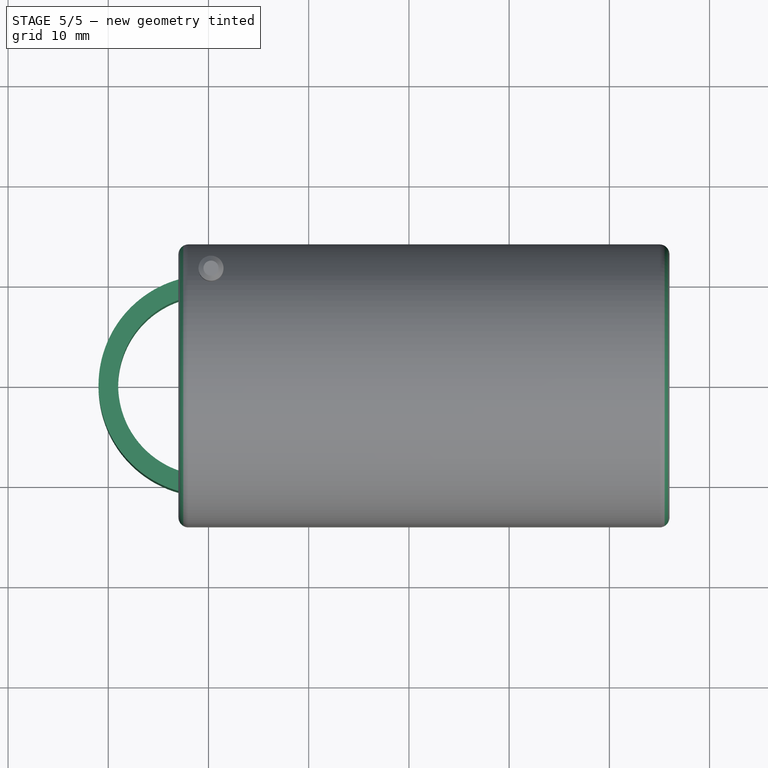
[diagram: stage 5 of 5 — top view after this stage's code; geometry added in this stage tinted green]
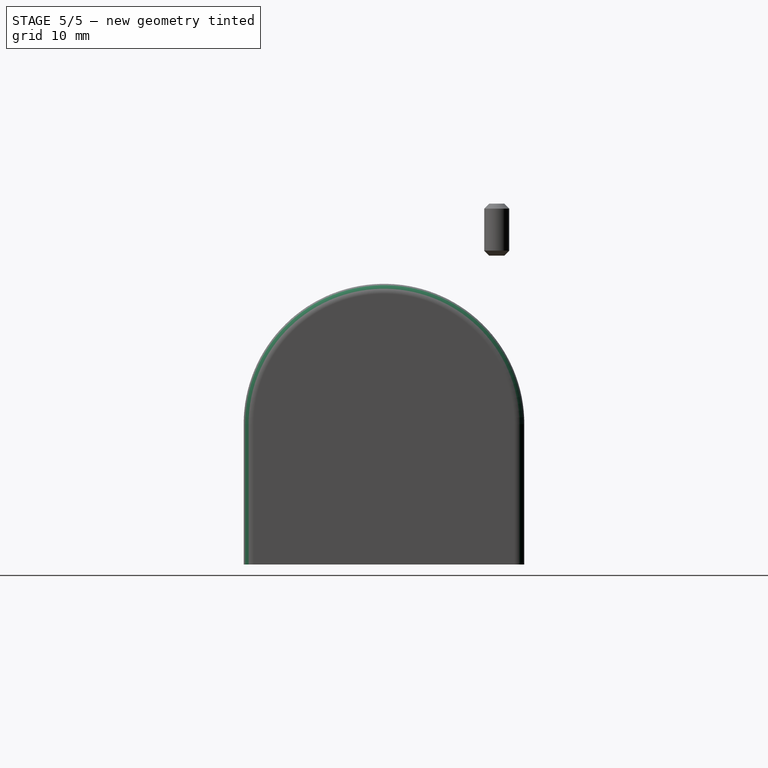
[diagram: stage 5 of 5 — right view after this stage's code; geometry added in this stage tinted green]
FEATURE [Sketcher::SketchObject] Sketch008
  FullyConstrained = true
  MapMode = 5
  Support = -> [XY_Plane005]
  expr: Constraints[2] = Spreadsheet.ConnectorPocketDiameter - 0.05
  expr: Constraints[3] = Spreadsheet.ConnectorThreadDiameter
  sketch-geometry (2):
    g0: Circle CenterX=0 CenterY=0 CenterZ=0 NormalX=0 NormalY=0 NormalZ=1 AngleXU=0 Radius=10.975
    g1: Circle CenterX=0 CenterY=0 CenterZ=0 NormalX=0 NormalY=0 NormalZ=1 AngleXU=0 Radius=9.015
  constraints (4):
    c: Coincident(g0,g-1)
    c: Coincident(g1,g0)
    c: Diameter(g0) = 21.95
    c: Diameter(g1) = 18.03
FEATURE [PartDesign::Pad] Pad002
  Direction = (0,0,1)
  Length = 11
  Length2 = 10
  Profile = -> Sketch008
  ReferenceAxis = -> Sketch008 [N_Axis]
  Type = 0
  expr: Length = Spreadsheet.ConnectorThreadLength
FEATURE [PartDesign::Body] Body002
  Group = -> [Sketch008,Pad002]
  Origin = -> Origin005
  Tip = -> Pad002
FEATURE [App::Part] Part002  label="ConnectorSocket"
  Group = -> [Body002]
  Origin = -> Origin004
  Placement = pos=(-18,0,47) rot=(0,1,0;1.5708rad)
FEATURE [PartDesign::Fillet] Fillet
  Base = -> Pocket004 [Edge20,Edge19,Edge21,Edge3]
  BaseFeature = -> Pocket004
  Placement = pos=(0,0,0) rot=(0.57735,0.57735,0.57735;2.0944rad)
  Radius = 1
  SupportTransform = false
  UseAllEdges = false
  expr: Radius = Spreadsheet.FiletSize
FEATURE [PartDesign::Fillet] Fillet001
  Base = -> Fillet [Edge70]
  BaseFeature = -> Fillet
  Placement = pos=(0,0,0) rot=(0.57735,0.57735,0.57735;2.0944rad)
  Radius = 1
  SupportTransform = false
  UseAllEdges = false
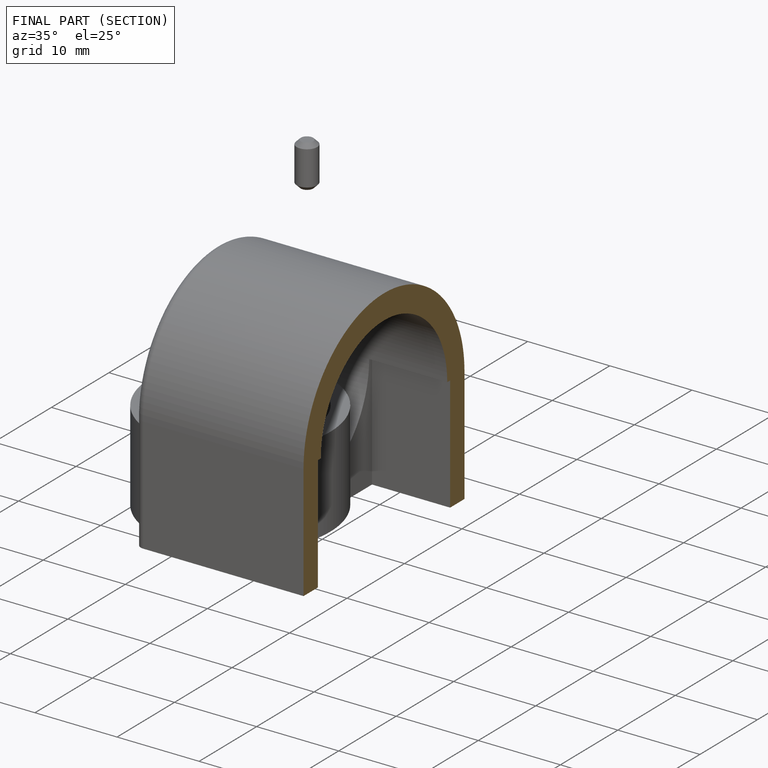
[diagram: finished part — half-section view (interior)]
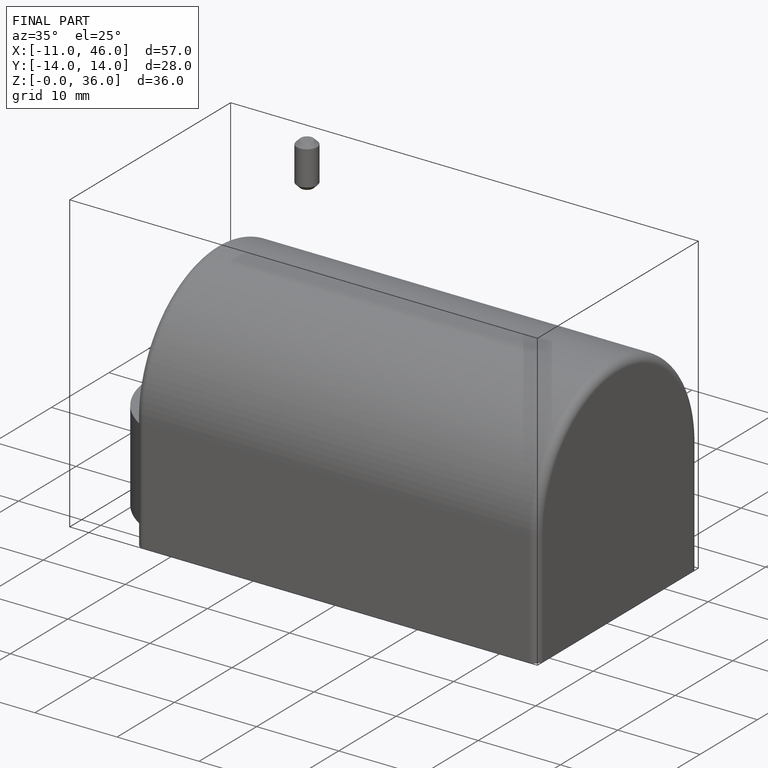
[diagram: finished part — iso view with bounding-box wireframe]
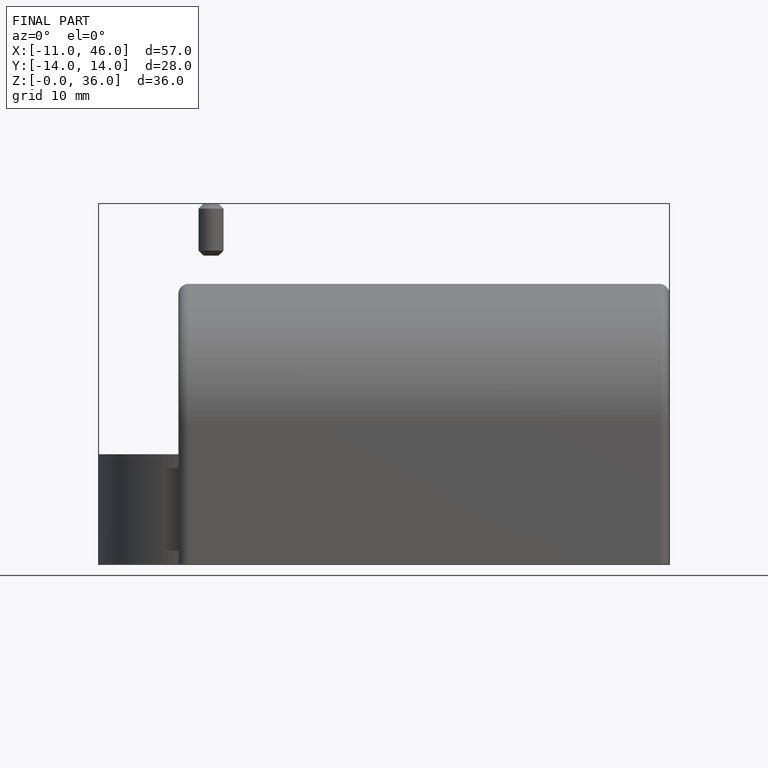
[diagram: finished part — front view with bounding-box wireframe]
